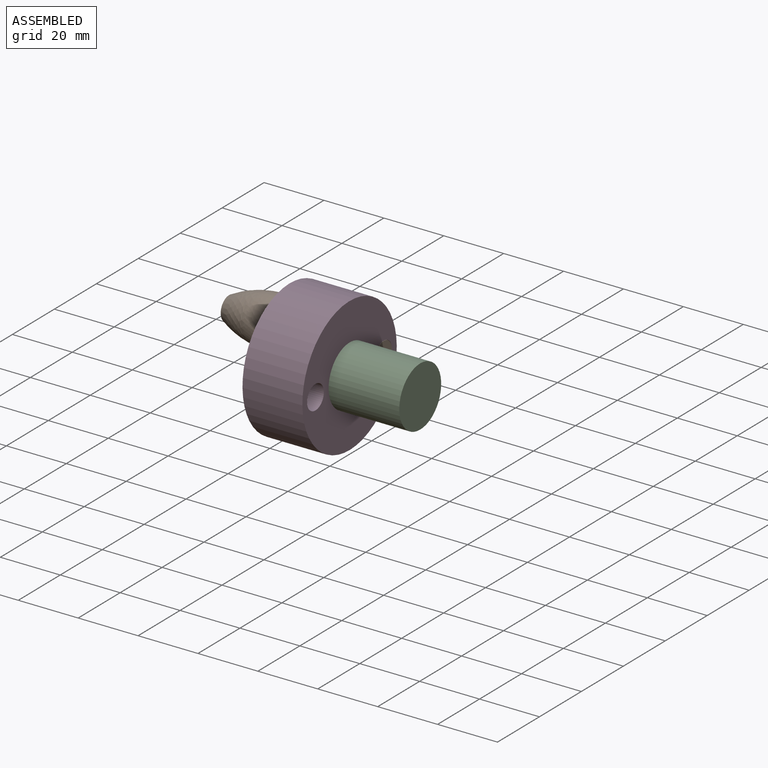
[diagram: assembled view]
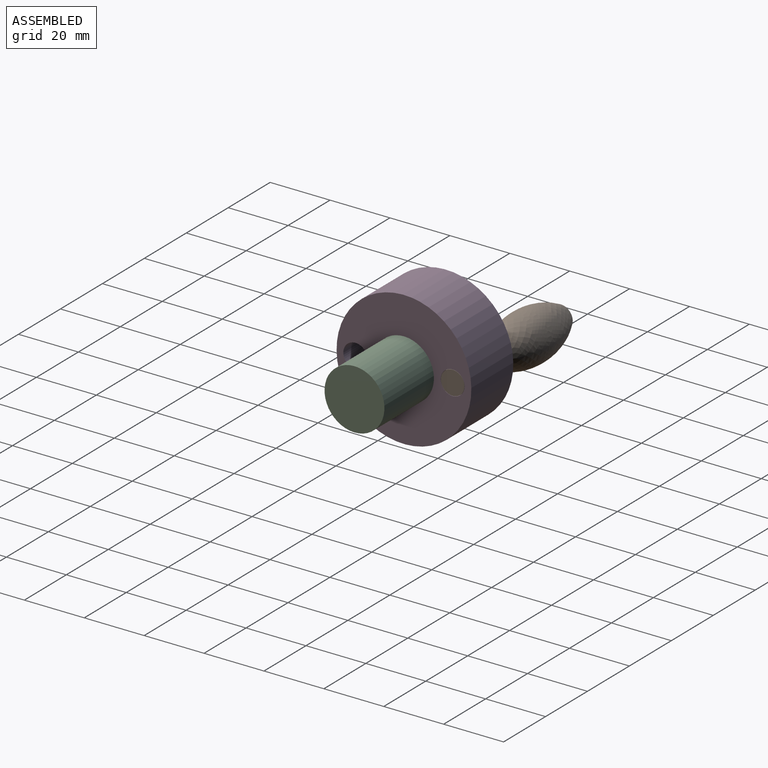
[diagram: assembled view, second angle]
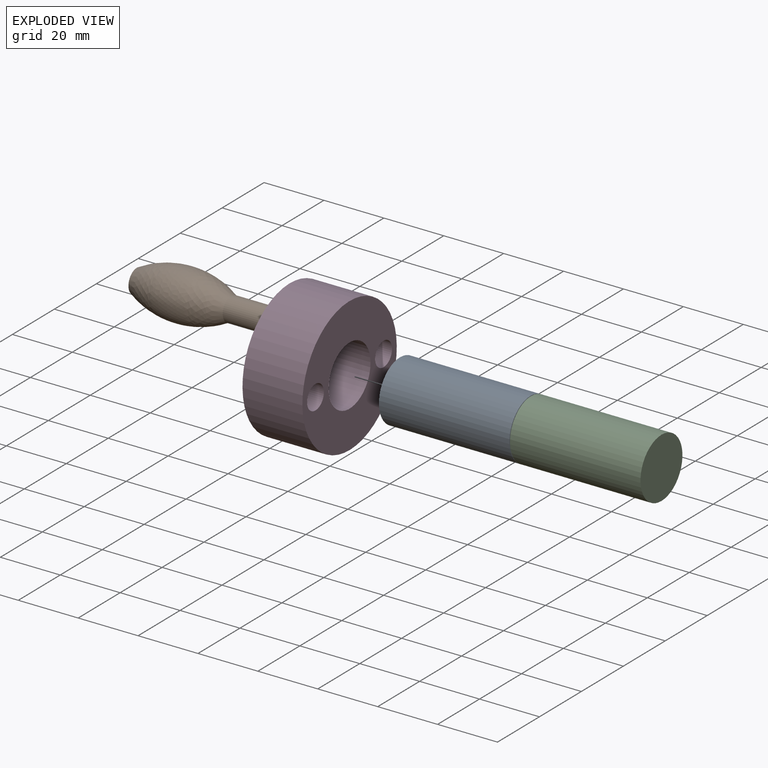
[diagram: exploded view]
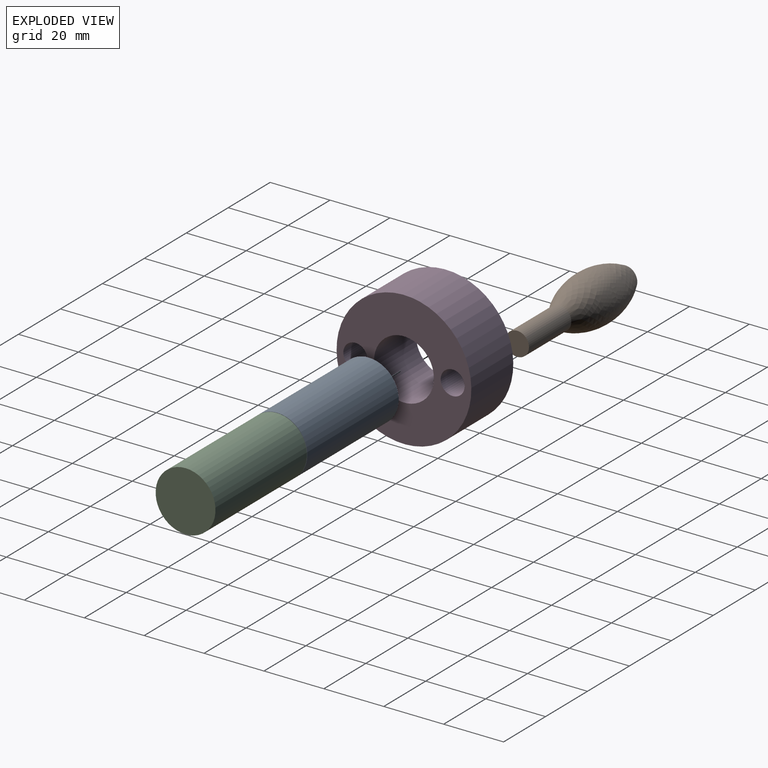
[diagram: exploded view, second angle]
ASSEMBLY  parts=4 mates=2
PART A: 3 faces, bbox 43.6x20x20 mm
  f0: plane 20x20mm, normal (-1,0,0), area 314.2mm2, adj f1
  f1: cylinder r=10mm len=43.59mm, axis (-1,0,0), area 2738.8mm2, adj f0,f2
  f2: plane 20x20mm, normal (1,0,0), area 314.2mm2, adj f1
PART B: 4 faces, bbox 51.7x16.3x16.3 mm
  f0: plane 7.86x7.86mm, normal (1,0,0), area 48.6mm2, adj f1
  f1: revolved ~31.48x16.27mm, area 1392.1mm2, adj f0,f2
  f2: cylinder r=3.94mm len=20.17mm, axis (-1,0,0), area 498.9mm2, adj f1,f3
  f3: plane 7.87x7.87mm, normal (-1,0,0), area 48.7mm2, adj f2
PART C: same geometry as A
PART D: 6 faces, bbox 45x20x45 mm
  f0: cylinder r=4mm len=20mm, axis (0,1,0), area 502.7mm2, adj f4,f5
  f1: cylinder r=22.5mm len=45mm, axis (0,1,0), area 2827.4mm2, adj f4,f5
  f2: cylinder r=10mm len=20mm, axis (0,1,0), area 1256.6mm2, adj f4,f5
  f3: cylinder r=4mm len=20mm, axis (0,1,0), area 502.7mm2, adj f4,f5
  f4: plane 45x45mm, normal (0,-1,0), area 1175.7mm2, adj f0,f1,f2,f3
  f5: plane 45x45mm, normal (0,1,0), area 1175.7mm2, adj f0,f1,f2,f3
PLACE A t=(19.36,8.95,-12.81)mm
PLACE B rot(axis=(0,0.7,0.71),180deg) t=(-19.67,-20.59,28.33)mm
PLACE C t=(19.36,8.95,-12.81)mm fixed
PLACE D rot(axis=(0.01,0.01,-1),90deg) t=(-19.67,8.95,28.91)mm
MATE fastened B.f2 <-> D.f3  axis (1,0,0) through (-19.67,25.2,29.23)mm
MATE revolute C.f1 <-> D.f1  axis (-1,0,0) through (-39.67,8.95,28.91)mm
